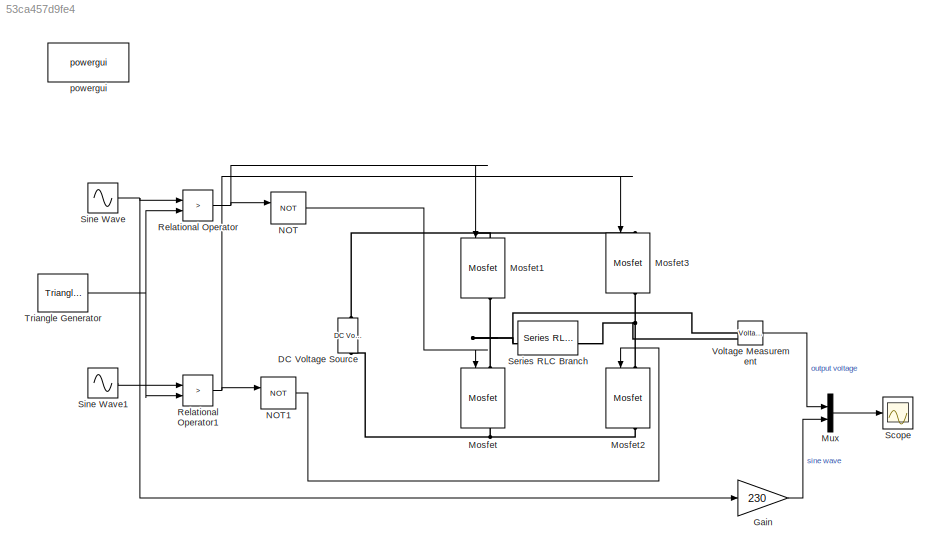
MODEL slx_53ca457d9fe4
KIND model
CONFIG AbsTol = auto
CONFIG EnableMultiTasking = off
CONFIG FixedStep = 10e-6
CONFIG MaxStep = auto
CONFIG MinStep = auto
CONFIG RelTol = 1e-3
CONFIG SampleTimeConstraint = Unconstrained
CONFIG SolverName = ode4
CONFIG StartTime = 0.0
CONFIG StopTime = 4/100
BLOCK [Reference] DC Voltage Source  REF=spsDCVoltageSourceLib/DC Voltage Source
  LibrarySourceBlock = sps_lib/Sources/DC Voltage Source
  SourceBlock = spsDCVoltageSourceLib/DC Voltage Source
  SourceType = DC Voltage Source
BLOCK [Gain] Gain
  Gain = 230
BLOCK [Reference] Mosfet  REF=spsMosfetLib/Mosfet
  LibrarySourceBlock = sps_lib/Power Electronics/Mosfet
  NameLocation = left
  SourceBlock = spsMosfetLib/Mosfet
  SourceType = Mosfet
BLOCK [Reference] Mosfet1  REF=spsMosfetLib/Mosfet
  LibrarySourceBlock = sps_lib/Power Electronics/Mosfet
  NameLocation = left
  SourceBlock = spsMosfetLib/Mosfet
  SourceType = Mosfet
BLOCK [Reference] Mosfet2  REF=spsMosfetLib/Mosfet
  LibrarySourceBlock = sps_lib/Power Electronics/Mosfet
  NameLocation = left
  SourceBlock = spsMosfetLib/Mosfet
  SourceType = Mosfet
BLOCK [Reference] Mosfet3  REF=spsMosfetLib/Mosfet
  LibrarySourceBlock = sps_lib/Power Electronics/Mosfet
  NameLocation = left
  SourceBlock = spsMosfetLib/Mosfet
  SourceType = Mosfet
BLOCK [Mux] Mux
  DisplayOption = bar
  Inputs = 2
BLOCK [Logic] NOT
  AllPortsSameDT = off
  IconShape = distinctive
  Operator = NOT
  OutDataTypeStr = boolean
BLOCK [Logic] NOT1
  AllPortsSameDT = off
  IconShape = distinctive
  Operator = NOT
  OutDataTypeStr = boolean
BLOCK [RelationalOperator] Relational Operator
  InputSameDT = off
  Operator = >
  OutDataTypeStr = boolean
  RndMeth = Simplest
BLOCK [RelationalOperator] Relational Operator1
  InputSameDT = off
  Operator = >
  OutDataTypeStr = boolean
  RndMeth = Simplest
BLOCK [Scope] Scope
  Floating = off
  NumInputPorts = 1
  ScopeSpecificationString = Simulink.scopes.TimeScopeBlockCfg('CurrentConfiguration', extmgr.ConfigurationSet(extmgr.Configuration('Core','General UI',true),extmgr.Configuration('Core','Source UI',true),extmgr.Configuration('Sources','WiredSimulink',true),extmgr.Configuration('Visuals','Time Domain',true,'SerializedDisplays',{struct('MinYLimReal','-122.54878','MaxYLimReal','118.89365','YLabelReal','','MinYLimMag',' 0.00000',...<+1765ch>
BLOCK [Reference] Series RLC Branch  REF=spsSeriesRLCBranchLib/Series RLC Branch
  LibrarySourceBlock = sps_lib/Passives/Series RLC Branch
  SourceBlock = spsSeriesRLCBranchLib/Series RLC Branch
  SourceType = Series RLC Branch
BLOCK [Sin] Sine Wave
  Frequency = 2*pi*50
  SampleTime = 0
BLOCK [Sin] Sine Wave1
  Frequency = pi
  SampleTime = 0
BLOCK [Reference] Triangle Generator  REF=spsTriangleGeneratorLib/Triangle
Generator
  LibrarySourceBlock = sps_lib/Sources/Signal Generator Sources/Triangle\nGenerator
  SourceBlock = spsTriangleGeneratorLib/Triangle\nGenerator
  SourceType = Triangle Generator
BLOCK [Reference] Voltage Measurement  REF=spsVoltageMeasurementLib/Voltage Measurement
  LibrarySourceBlock = sps_lib/Sensors and Measurements/Voltage Measurement
  SourceBlock = spsVoltageMeasurementLib/Voltage Measurement
  SourceType = Voltage Measurement
  UserDataPersistent = on
BLOCK [Reference] powergui  REF=sps_lib/powergui
  LibrarySourceBlock = sps_lib/powergui
  Priority = 1
  SourceBlock = sps_lib/powergui
  SourceType = PSB option menu block
LINE Gain:1 -> Mux:2
LINE Mux:1 -> Scope:1
LINE NOT1:1 -> Mosfet2:1
LINE NOT:1 -> Mosfet:1
NET Relational Operator1:1 -> Mosfet3:1, NOT1:1
NET Relational Operator:1 -> Mosfet1:1, NOT:1
LINE Sine Wave1:1 -> Relational Operator1:1
NET Sine Wave:1 -> Gain:1, Relational Operator:1
NET Triangle Generator:1 -> Relational Operator1:2, Relational Operator:2
LINE Voltage Measurement:1 -> Mux:1
PNET net1: DC Voltage Source:LConn1 -- Mosfet2:RConn1 -- Mosfet:RConn1
PNET net2: DC Voltage Source:RConn1 -- Mosfet1:LConn1 -- Mosfet3:LConn1
PNET net3: Mosfet1:RConn1 -- Mosfet:LConn1 -- Series RLC Branch:LConn1 -- Voltage Measurement:LConn1
PNET net4: Mosfet2:LConn1 -- Mosfet3:RConn1 -- Series RLC Branch:RConn1 -- Voltage Measurement:LConn2
note: NET lines group one-source signal fan-out (src -> all destinations, sorted); 1:1 wires keep LINE; PNET lines group multi-terminal physical nets as a canonical sorted terminal list (undirected conserving connections); 2-terminal nets keep the pairwise PLINE form
